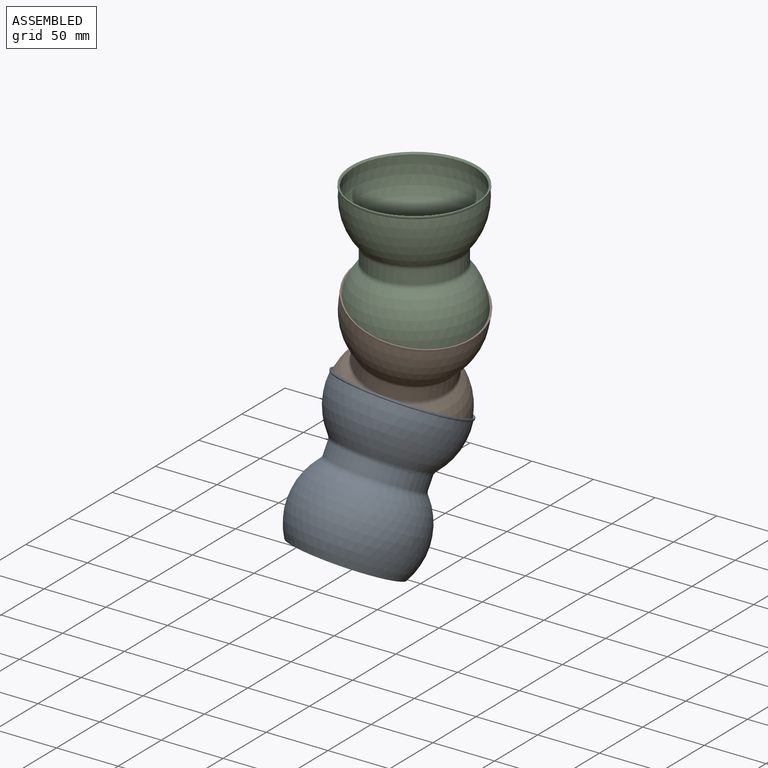
[diagram: assembled view]
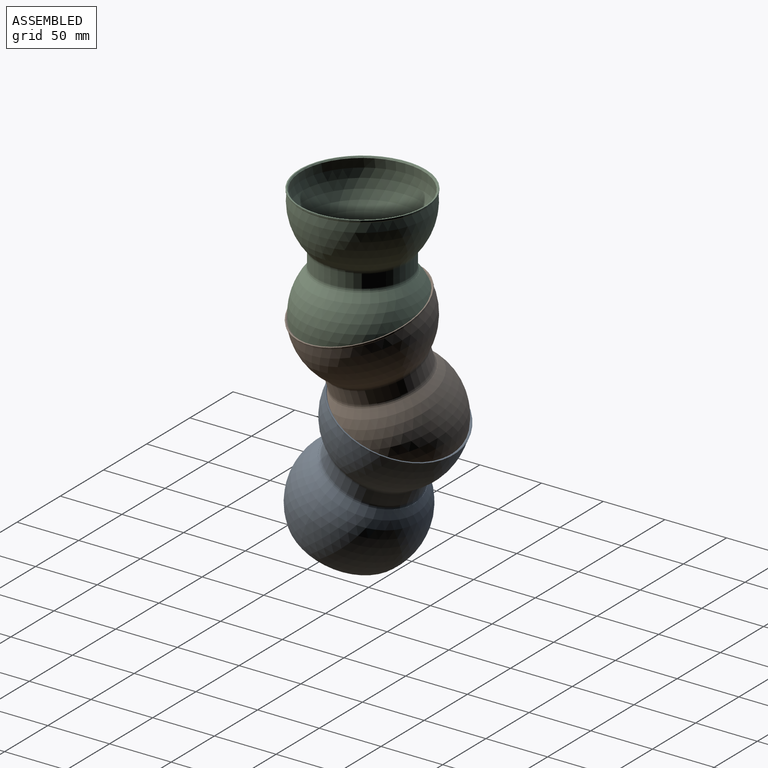
[diagram: assembled view, second angle]
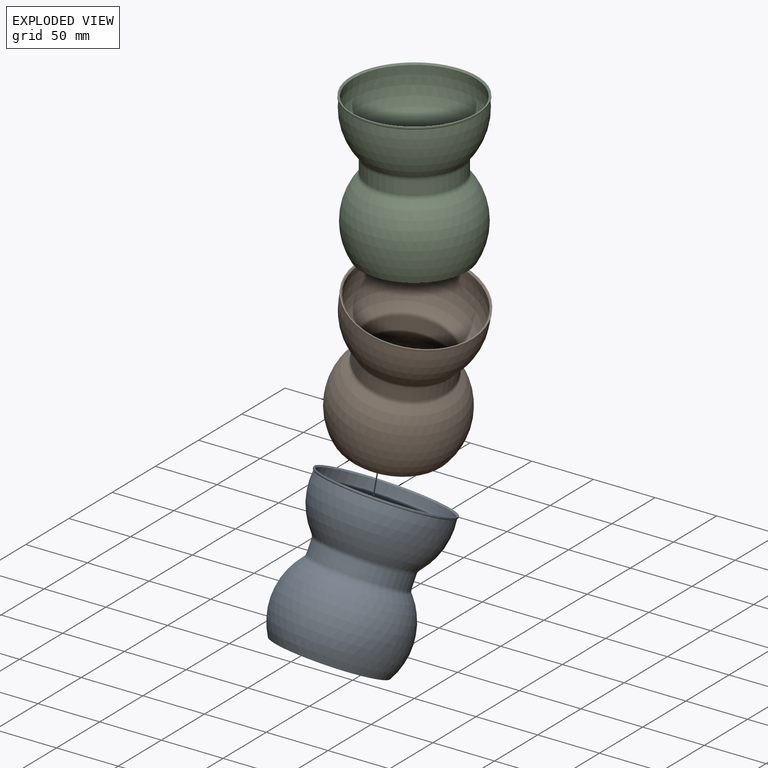
[diagram: exploded view]
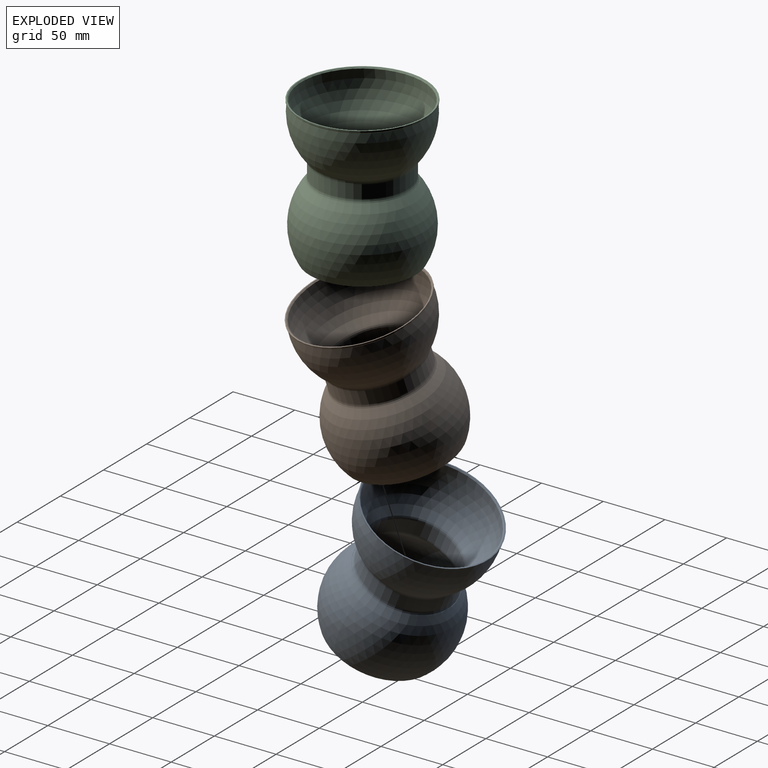
[diagram: exploded view, second angle]
ASSEMBLY  parts=3 mates=2
PART A: 16 faces, bbox 102.3x102.3x117.8 mm
  f0: cone r=38.11mm half-angle=49.7deg, axis (0,0,1), area 24mm2, adj f6,f13
  f1: plane 102.31x102.31mm, normal (0,0,1), area 294.2mm2, adj f10,f15
  f2: sphere r=50mm, area 12854.8mm2, adj f11,f15
  f3: cylinder r=36.12mm len=72.24mm, axis (0,0,1), area 2575.2mm2, adj f11,f12
  f4: sphere r=49.3mm, area 17838.5mm2, adj f5,f12
  f5: cone r=42.86mm half-angle=59deg, axis (0,0,-1), area 214.1mm2, adj f4,f6
  f6: sphere r=50.1mm, area 18331.7mm2, adj f0,f5
  f7: cylinder r=36.92mm len=73.84mm, axis (0,0,1), area 2494mm2, adj f13,f14
  f8: sphere r=50.9mm, area 12935.4mm2, adj f9,f14
  f9: cone r=51.15mm half-angle=45deg, axis (0,0,1), area 319.1mm2, adj f8,f10
  f10: cylinder r=51.15mm len=102.31mm, axis (0,0,1), area 385.7mm2, adj f1,f9
  f11: torus R=41.12mm, axis (0,0,1), area 833.9mm2, adj f2,f3
  f12: torus R=41.12mm, axis (0,0,-1), area 816.7mm2, adj f3,f4
  f13: torus R=41.92mm, axis (0,0,-1), area 825.6mm2, adj f0,f7
  f14: torus R=41.92mm, axis (0,0,1), area 848.1mm2, adj f7,f8
  f15: cone r=49.4mm half-angle=40.6deg, axis (0,0,1), area 399.1mm2, adj f1,f2
PART B: same geometry as A
PART C: same geometry as A
PLACE A rot(axis=(-0.92,0.14,-0.36),27.3deg) t=(-20.97,11.58,-163.15)mm
PLACE B rot(axis=(0.19,0.58,-0.79),27.3deg) t=(0,0,-83.33)mm
PLACE C at identity fixed
MATE ball C.f3 <-> B.f3  axis (0,0,1) through (0,0,-83.33)mm
MATE ball B.f3 <-> A.f3  axis (0.25,-0.14,0.96) through (-20.97,11.58,-163.15)mm
